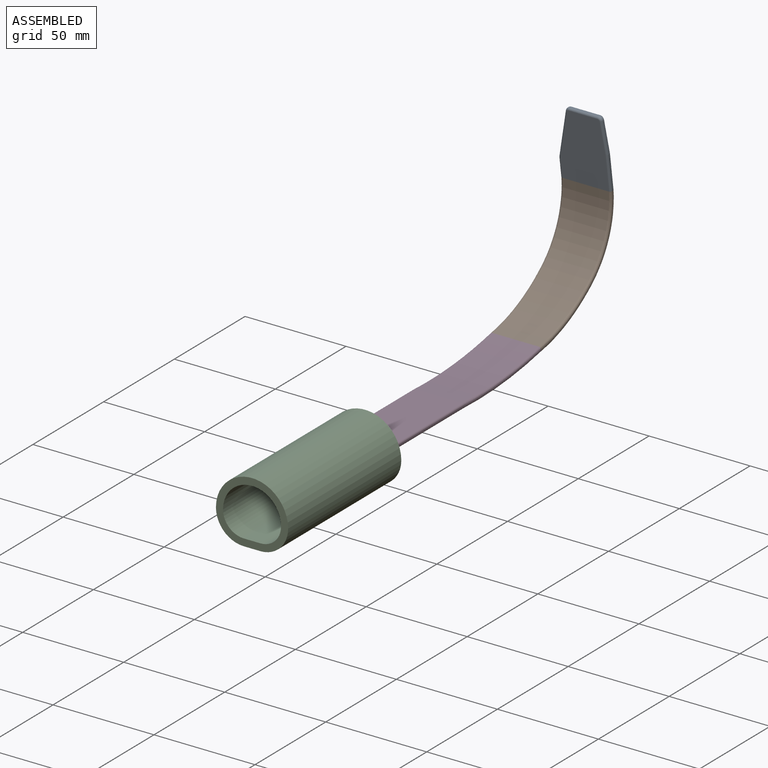
[diagram: assembled view]
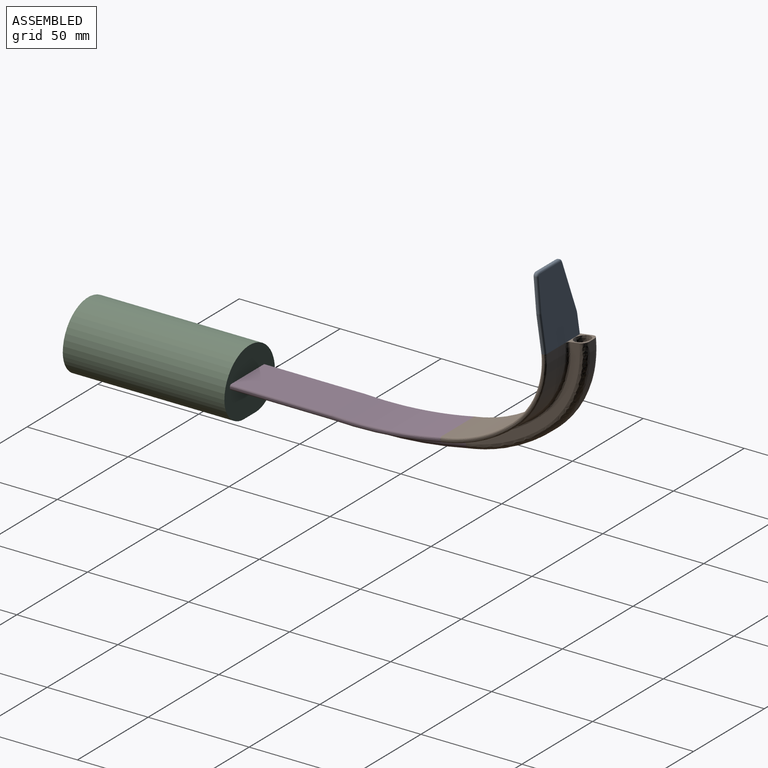
[diagram: assembled view, second angle]
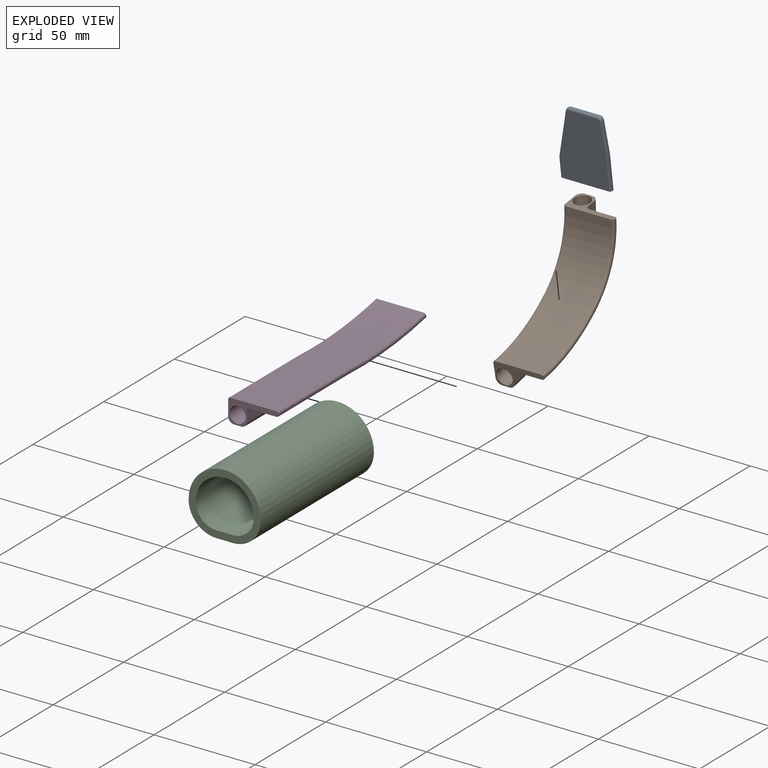
[diagram: exploded view]
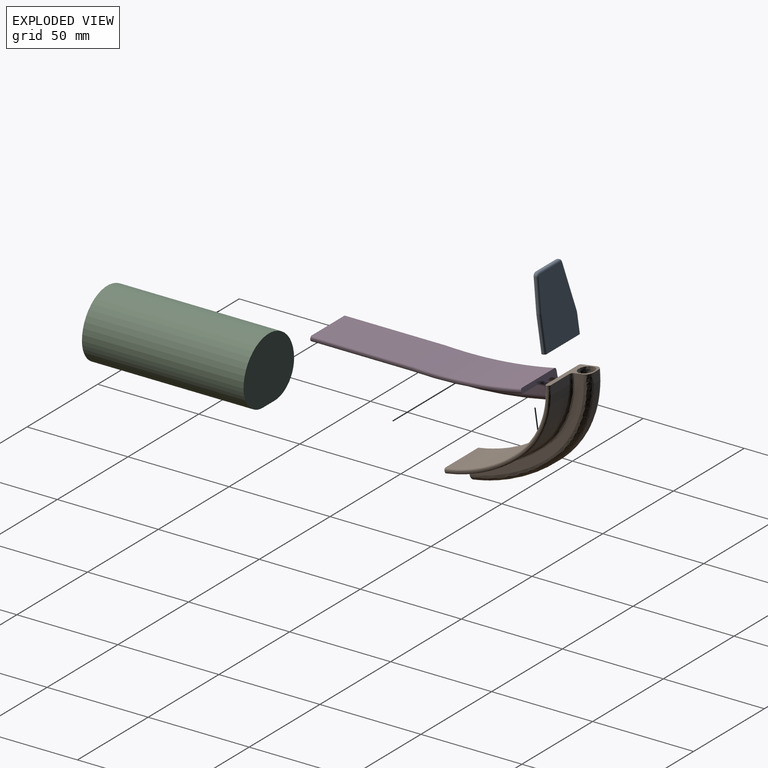
[diagram: exploded view, second angle]
ASSEMBLY  parts=4 mates=2
PART A: 30 faces, bbox 35.2x2.5x25 mm
  f0: plane 17.44x0.5mm, normal (0,0,1), area 8.7mm2, adj f1,f9,f20,f29
  f1: cylinder r=1.5mm len=0.5mm, axis (0,1,0), area 0.1mm2, adj f0,f2,f19,f28
  f2: plane 15.61x1.34mm, normal (-0.09,0,1), area 7.8mm2, adj f1,f3,f18,f27
  f3: cylinder r=2mm len=1.99mm, axis (0,1,0), area 1.5mm2, adj f2,f4,f17,f26
  f4: plane 14.09x0.5mm, normal (-1,0,0), area 7mm2, adj f3,f5,f16,f25
  f5: cylinder r=2mm len=1.94mm, axis (0,1,0), area 1.3mm2, adj f4,f6,f15,f24
  f6: plane 23.13x5.5mm, normal (-0.23,0,-0.97), area 11.9mm2, adj f5,f7,f14,f23
  f7: cylinder r=5mm len=1.16mm, axis (0,1,0), area 0.6mm2, adj f6,f8,f13,f22
  f8: plane 9.18x0.5mm, normal (0,0,-1), area 4.6mm2, adj f7,f9,f12,f21
  f9: plane 25x2.5mm, normal (1,0,0), area 61.6mm2, adj f0,f8,f10,f11,f12,f20,f21,f29
  f10: plane 34x23mm, normal (0,-1,0), area 699.5mm2, adj f9,f21,f22,f23,f24,f25,f26,f27
  f11: plane 34x23mm, normal (0,1,0), area 699.5mm2, adj f9,f12,f13,f14,f15,f16,f17,f18
  f12: cylinder r=1mm len=9.18mm, axis (1,0,0), area 14.4mm2, adj f8,f9,f11,f13
  f13: torus R=4mm, axis (0,-1,0), area 1.7mm2, adj f7,f11,f12,f14
  f14: cylinder r=1mm len=23.36mm, axis (0.97,0,-0.23), area 37.3mm2, adj f6,f11,f13,f15
  f15: torus R=1mm, axis (0,-1,0), area 3.4mm2, adj f5,f11,f14,f16
  f16: cylinder r=1mm len=14.09mm, axis (0,0,-1), area 22.1mm2, adj f4,f11,f15,f17
  f17: torus R=1mm, axis (0,-1,0), area 3.8mm2, adj f3,f11,f16,f18
  f18: cylinder r=1mm len=15.69mm, axis (-1,0,-0.09), area 24.6mm2, adj f2,f11,f17,f19
  f19: torus R=0.5mm, axis (0,-1,0), area 0.2mm2, adj f1,f11,f18,f20
  f20: cylinder r=1mm len=17.44mm, axis (-1,0,0), area 27.4mm2, adj f0,f9,f11,f19
  f21: cylinder r=1mm len=9.18mm, axis (-1,0,0), area 14.4mm2, adj f8,f9,f10,f22
  f22: torus R=4mm, axis (0,-1,0), area 1.7mm2, adj f7,f10,f21,f23
  f23: cylinder r=1mm len=23.36mm, axis (-0.97,0,0.23), area 37.3mm2, adj f6,f10,f22,f24
  f24: torus R=1mm, axis (0,-1,0), area 3.4mm2, adj f5,f10,f23,f25
  f25: cylinder r=1mm len=14.09mm, axis (0,0,1), area 22.1mm2, adj f4,f10,f24,f26
  f26: torus R=1mm, axis (0,-1,0), area 3.8mm2, adj f3,f10,f25,f27
  f27: cylinder r=1mm len=15.69mm, axis (1,0,0.09), area 24.6mm2, adj f2,f10,f26,f28
  f28: torus R=0.5mm, axis (0,-1,0), area 0.2mm2, adj f1,f10,f27,f29
  f29: cylinder r=1mm len=17.44mm, axis (1,0,0), area 27.4mm2, adj f0,f9,f10,f28
PART B: 25 faces, bbox 25.3x63.4x66.8 mm
  f0: bspline ~43.9x23.44mm, area 1135.7mm2, adj f1,f2
  f1: bspline ~46x31.57mm, area 1078.3mm2, adj f0,f3
  f2: plane 25.1x11.47mm, normal (0,-0.15,0.99), area 93.7mm2, adj f0,f4,f5,f6,f7,f8,f9,f10
  f3: plane 25.1x11.34mm, normal (0,-0.98,-0.21), area 93.7mm2, adj f1,f13,f14,f15,f16,f17,f18,f19
  f4: bspline ~37.7x16.49mm, area 97.4mm2, adj f2,f12,f13,f14
  f5: bspline ~44.24x21.38mm, area 228.2mm2, adj f2,f6,f14,f15
  f6: cylinder r=51.53mm len=44.25mm, axis (1,0,0), area 173.2mm2, adj f2,f5,f7,f16
  f7: bspline ~44.24x19.88mm, area 228.2mm2, adj f2,f6,f17,f18
  f8: bspline ~35.08x15.21mm, area 60.9mm2, adj f2,f9,f18,f19
  f9: cylinder r=40.04mm len=34.21mm, axis (1,0,0), area 884.5mm2, adj f2,f8,f10,f20
  f10: bspline ~35.08x15.21mm, area 60.9mm2, adj f2,f9,f21,f22
  f11: bspline ~36.39x15.68mm, area 63.6mm2, adj f2,f12,f22,f23
  f12: cylinder r=42.54mm len=36.39mm, axis (1,0,0), area 531.1mm2, adj f2,f4,f11,f24
  f13: bspline ~37.79x18.27mm, area 97.1mm2, adj f3,f4,f14,f24
  f14: plane 60.28x57.82mm, normal (1,0,0), area 392.9mm2, adj f2,f3,f4,f5,f13,f15
  f15: bspline ~41.69x21.24mm, area 213mm2, adj f3,f5,f14,f16
  f16: cylinder r=84.15mm len=41.06mm, axis (1,0,0), area 160.4mm2, adj f3,f6,f15,f17
  f17: bspline ~41.69x21.24mm, area 213mm2, adj f3,f7,f16,f18
  f18: plane 60.28x58.45mm, normal (-1,0,0), area 637.9mm2, adj f2,f3,f7,f8,f17,f19
  f19: bspline ~36.26x17.16mm, area 62.4mm2, adj f3,f8,f18,f20
  f20: cylinder r=72.66mm len=35.57mm, axis (1,0,0), area 910mm2, adj f3,f9,f19,f21
  f21: bspline ~36.26x17.16mm, area 62.4mm2, adj f3,f10,f20,f22
  f22: plane 52.37x51.41mm, normal (1,0,0), area 39.9mm2, adj f2,f3,f10,f11,f21,f23
  f23: bspline ~36.97x17.53mm, area 63.9mm2, adj f3,f11,f22,f24
  f24: cylinder r=75.16mm len=36.77mm, axis (1,0,0), area 532mm2, adj f3,f12,f13,f23
PART C: 11 faces, bbox 35.8x31.6x80 mm
  f0: plane 35.75x31.63mm, normal (0,0,1), area 338.1mm2, adj f1,f2,f3,f4,f6,f7,f8,f9
  f1: plane 80x8.25mm, normal (0,-1,0), area 660mm2, adj f0,f2,f4,f5
  f2: cylinder r=13.75mm len=80mm, axis (0,0,-1), area 1727.9mm2, adj f0,f1,f3,f5
  f3: cylinder r=17.88mm len=80mm, axis (0,0,-1), area 4492.5mm2, adj f0,f2,f4,f5
  f4: cylinder r=13.75mm len=80mm, axis (0,0,-1), area 1727.9mm2, adj f0,f1,f3,f5
  f5: plane 35.75x31.63mm, normal (0,0,-1), area 912.3mm2, adj f1,f2,f3,f4
  f6: plane 76.5x8.25mm, normal (0,1,0), area 631.1mm2, adj f0,f7,f9,f10
  f7: cylinder r=10.25mm len=76.5mm, axis (0,0,-1), area 1231.7mm2, adj f0,f6,f8,f10
  f8: cylinder r=14.38mm len=76.5mm, axis (0,0,-1), area 3454.8mm2, adj f0,f7,f9,f10
  f9: cylinder r=10.25mm len=76.5mm, axis (0,0,-1), area 1231.7mm2, adj f0,f6,f8,f10
  f10: plane 28.75x24.63mm, normal (0,0,1), area 574.2mm2, adj f6,f7,f8,f9
PART D: 25 faces, bbox 26.1x108x19.1 mm
  f0: bspline ~56.64x12.64mm, area 1407mm2, adj f1,f2
  f1: cylinder r=4mm len=49.87mm, axis (0,1,0), area 1253.4mm2, adj f0,f3
  f2: plane 26.11x12.36mm, normal (0,0.98,0.21), area 93.7mm2, adj f0,f4,f5,f6,f7,f8,f9,f10
  f3: plane 25x11.5mm, normal (0,-1,0), area 93.7mm2, adj f1,f13,f14,f15,f16,f17,f18,f19
  f4: torus R=220.27mm, axis (1,0,0), area 267.8mm2, adj f2,f5,f13,f19
  f5: cylinder r=223.27mm len=56.73mm, axis (1,0,0), area 199.8mm2, adj f2,f4,f6,f14
  f6: torus R=220.27mm, axis (1,0,0), area 267.8mm2, adj f2,f5,f15,f24
  f7: torus R=213.27mm, axis (1,0,0), area 86.2mm2, adj f2,f8,f16,f23
  f8: cylinder r=214.27mm len=54.65mm, axis (1,0,0), area 714.8mm2, adj f2,f7,f9,f17
  f9: torus R=215.77mm, axis (1,0,0), area 129.8mm2, adj f2,f8,f18,f19
  f10: bspline ~54.32x5.65mm, area 85.6mm2, adj f2,f11,f20,f23
  f11: bspline ~54.24x23mm, area 1251.2mm2, adj f2,f10,f12,f21
  f12: bspline ~54.32x5.65mm, area 85.6mm2, adj f2,f11,f22,f24
  f13: cylinder r=3mm len=49.83mm, axis (0,1,0), area 234.7mm2, adj f3,f4,f14,f19
  f14: plane 49.76x3.5mm, normal (0,0,-1), area 174.2mm2, adj f3,f5,f13,f15
  f15: cylinder r=3mm len=49.83mm, axis (0,1,0), area 234.7mm2, adj f3,f6,f14,f24
  f16: cylinder r=1mm len=49.99mm, axis (0,1,0), area 78.5mm2, adj f3,f7,f17,f23
  f17: plane 49.97x13mm, normal (0,0,-1), area 649.6mm2, adj f3,f8,f16,f18
  f18: cylinder r=1.5mm len=49.97mm, axis (0,1,0), area 117.7mm2, adj f3,f9,f17,f19
  f19: plane 105.87x9.24mm, normal (1,0,0), area 475.8mm2, adj f2,f3,f4,f9,f13,f18
  f20: cylinder r=1mm len=50.03mm, axis (0,1,0), area 78.6mm2, adj f3,f10,f21,f23
  f21: plane 50.03x23mm, normal (0,0,1), area 1150.7mm2, adj f3,f11,f20,f22
  f22: cylinder r=1mm len=50.03mm, axis (0,1,0), area 78.6mm2, adj f3,f12,f21,f24
  f23: plane 104.41x5.17mm, normal (1,0,0), area 52.4mm2, adj f2,f3,f7,f10,f16,f20
  f24: plane 105.87x12.18mm, normal (-1,0,0), area 790.7mm2, adj f2,f3,f6,f12,f15,f22
PLACE A rot(axis=(0.07,0.99,0.07),90.3deg) t=(-21.59,165.28,114.13)mm
PLACE B t=(-23.08,13.04,30.53)mm
PLACE C rot(axis=(1,0,0),90deg) t=(-24.58,13.04,26.36)mm
PLACE D t=(-23.08,13.04,30.53)mm
MATE fastened C.f5 <-> D.f18  axis (0,1,0) through (-24.58,13.04,27.78)mm
MATE fastened A.f9 <-> B.f2  axis (0,0.15,-0.99) through (-23.08,166.79,86.58)mm
